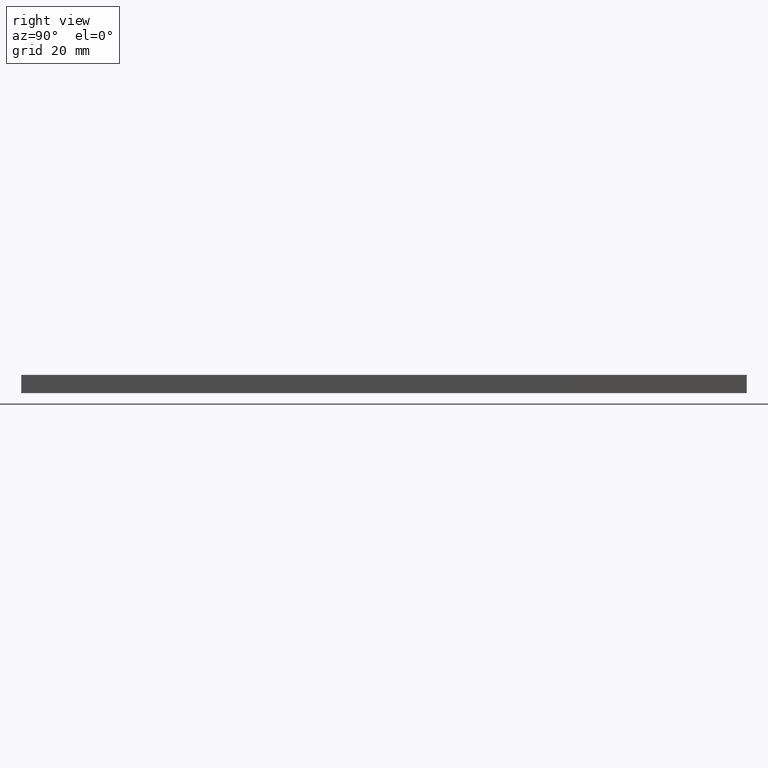
[diagram: clean part render]
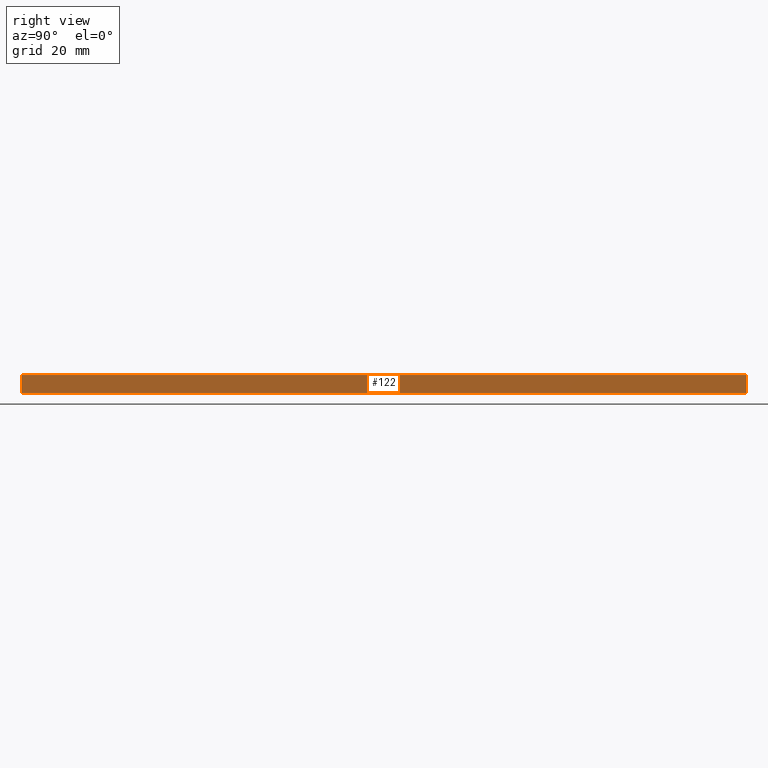
[diagram: same view with one face highlighted and labeled with its STEP entity id]
A machine part, right view. The second image highlights one B-rep face of the part: STEP entity #122.
In plain terms, the highlighted planar face has unit normal (-1, 0, 0).
Its self-contained STEP definition (entity closure, byte-faithful):
#5 = CARTESIAN_POINT ( 'NONE',  ( 25.00000000000000000, 0.0000000000000000000, 5.000000000000000000 ) ) ;
#6 = EDGE_CURVE ( 'NONE', #119, #28, #224, .T. ) ;
#16 = CARTESIAN_POINT ( 'NONE',  ( 25.00000000000000000, 200.0000000000000000, 5.000000000000000000 ) ) ;
#17 = VECTOR ( 'NONE', #115, 1000.000000000000000 ) ;
#28 = VERTEX_POINT ( 'NONE', #117 ) ;
#33 = VECTOR ( 'NONE', #155, 1000.000000000000000 ) ;
#40 = FACE_OUTER_BOUND ( 'NONE', #126, .T. ) ;
#42 = DIRECTION ( 'NONE',  ( 0.0000000000000000000, 0.0000000000000000000, -1.000000000000000000 ) ) ;
#43 = ORIENTED_EDGE ( 'NONE', *, *, #6, .T. ) ;
#47 = VECTOR ( 'NONE', #59, 1000.000000000000000 ) ;
#59 = DIRECTION ( 'NONE',  ( 0.0000000000000000000, -1.000000000000000000, 0.0000000000000000000 ) ) ;
#67 = PLANE ( 'NONE',  #134 ) ;
#73 = ORIENTED_EDGE ( 'NONE', *, *, #219, .F. ) ;
#82 = CARTESIAN_POINT ( 'NONE',  ( 25.00000000000000000, 200.0000000000000000, 5.000000000000000000 ) ) ;
#104 = ORIENTED_EDGE ( 'NONE', *, *, #150, .F. ) ;
#115 = DIRECTION ( 'NONE',  ( 0.0000000000000000000, -1.000000000000000000, 0.0000000000000000000 ) ) ;
#117 = CARTESIAN_POINT ( 'NONE',  ( 25.00000000000000000, 0.0000000000000000000, 5.000000000000000000 ) ) ;
#119 = VERTEX_POINT ( 'NONE', #82 ) ;
#122 = ADVANCED_FACE ( 'NONE', ( #40 ), #67, .F. ) ;
#124 = LINE ( 'NONE', #16, #33 ) ;
#126 = EDGE_LOOP ( 'NONE', ( #160, #104, #73, #43 ) ) ;
#130 = VERTEX_POINT ( 'NONE', #234 ) ;
#132 = VECTOR ( 'NONE', #42, 1000.000000000000000 ) ;
#134 = AXIS2_PLACEMENT_3D ( 'NONE', #138, #194, #186 ) ;
#138 = CARTESIAN_POINT ( 'NONE',  ( 25.00000000000000000, 1000.000000000000000, 5.000000000000000000 ) ) ;
#150 = EDGE_CURVE ( 'NONE', #130, #231, #188, .T. ) ;
#155 = DIRECTION ( 'NONE',  ( 0.0000000000000000000, 0.0000000000000000000, -1.000000000000000000 ) ) ;
#160 = ORIENTED_EDGE ( 'NONE', *, *, #205, .T. ) ;
#175 = CARTESIAN_POINT ( 'NONE',  ( 25.00000000000000000, 1000.000000000000000, 0.0000000000000000000 ) ) ;
#186 = DIRECTION ( 'NONE',  ( 0.0000000000000000000, 0.0000000000000000000, 1.000000000000000000 ) ) ;
#188 = LINE ( 'NONE', #175, #17 ) ;
#194 = DIRECTION ( 'NONE',  ( -1.000000000000000000, 0.0000000000000000000, 0.0000000000000000000 ) ) ;
#196 = CARTESIAN_POINT ( 'NONE',  ( 25.00000000000000000, 0.0000000000000000000, 0.0000000000000000000 ) ) ;
#205 = EDGE_CURVE ( 'NONE', #28, #231, #221, .T. ) ;
#218 = CARTESIAN_POINT ( 'NONE',  ( 25.00000000000000000, 1000.000000000000000, 5.000000000000000000 ) ) ;
#219 = EDGE_CURVE ( 'NONE', #119, #130, #124, .T. ) ;
#221 = LINE ( 'NONE', #5, #132 ) ;
#224 = LINE ( 'NONE', #218, #47 ) ;
#231 = VERTEX_POINT ( 'NONE', #196 ) ;
#234 = CARTESIAN_POINT ( 'NONE',  ( 25.00000000000000000, 200.0000000000000000, 0.0000000000000000000 ) ) ;